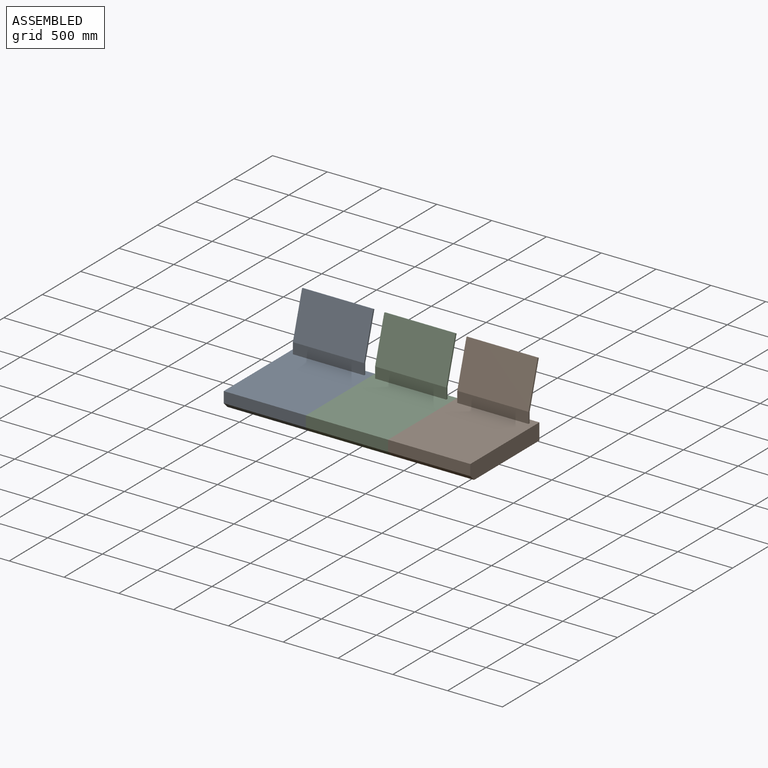
[diagram: assembled view]
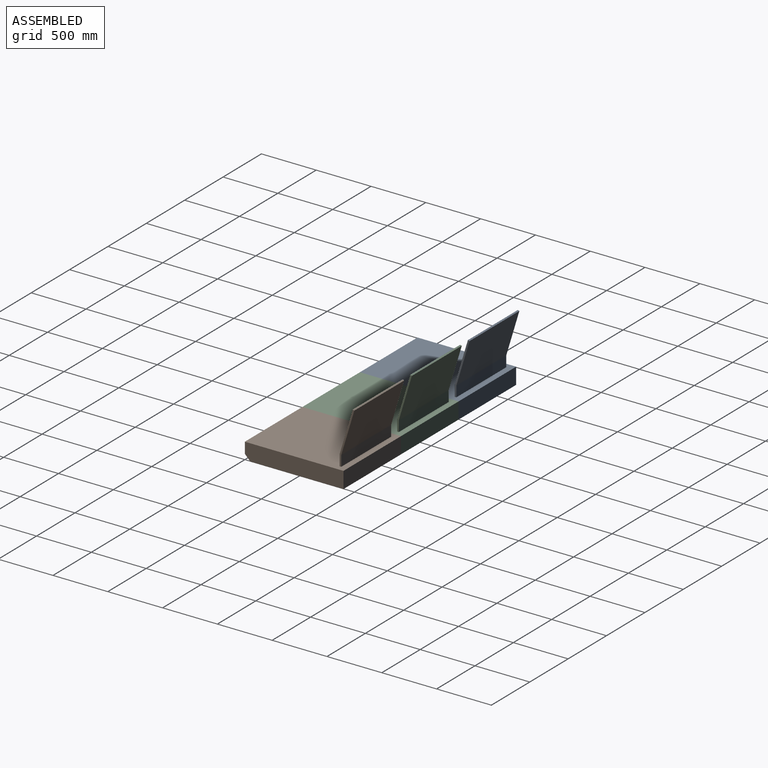
[diagram: assembled view, second angle]
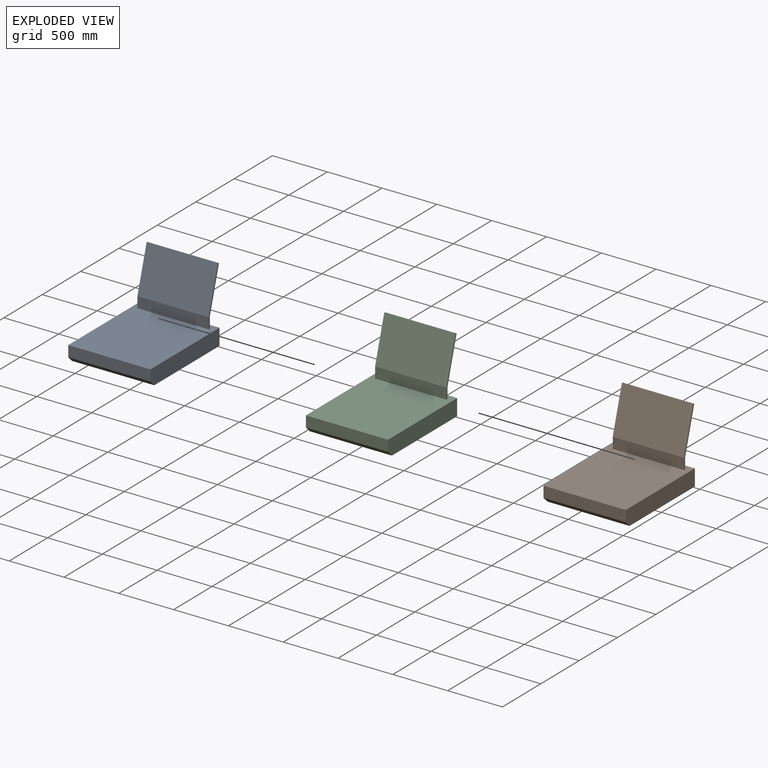
[diagram: exploded view]
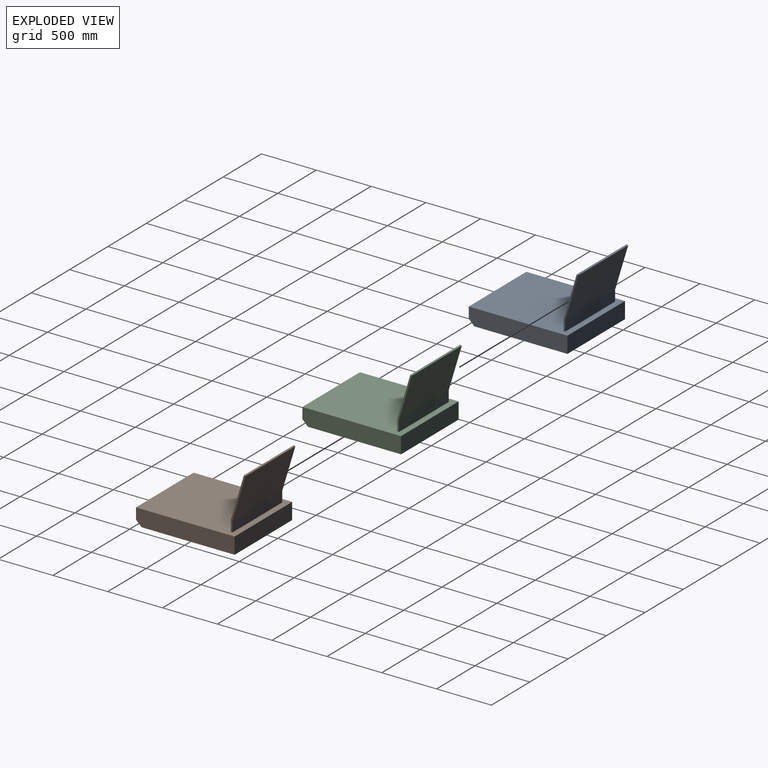
[diagram: exploded view, second angle]
ASSEMBLY  parts=3 mates=2
PART A: 14 faces, bbox 750x964.2x650 mm
  f0: plane 750x150mm, normal (0,1,0), area 112500mm2, adj f1,f3,f4,f5
  f1: plane 900x750mm, normal (0,0,1), area 665250mm2, adj f0,f2,f4,f5,f7,f11,f12,f13
  f2: plane 750x100mm, normal (0,-1,0), area 75000mm2, adj f1,f4,f5,f6
  f3: plane 850x750mm, normal (0,0,-1), area 637500mm2, adj f0,f4,f5,f6
  f4: plane 900x150mm, normal (1,0,0), area 133750mm2, adj f0,f1,f2,f3,f6
  f5: plane 900x150mm, normal (-1,0,0), area 133750mm2, adj f0,f1,f2,f3,f6
  f6: plane 750x50mm, normal (0,-0.71,-0.71), area 53033mm2, adj f2,f3,f4,f5
  f7: plane 650x97.8mm, normal (0,1,0), area 63569mm2, adj f1,f8,f12,f13
  f8: plane 650x397.31mm, normal (0,0.96,-0.29), area 269619mm2, adj f7,f9,f12,f13
  f9: plane 650x14.19mm, normal (0,0.33,0.95), area 9758.1mm2, adj f8,f10,f12,f13
  f10: plane 650x400mm, normal (0,-0.96,0.29), area 271448mm2, adj f9,f11,f12,f13
  f11: plane 650x100mm, normal (0,-1,0), area 65000mm2, adj f1,f10,f12,f13
  f12: plane 500x134.19mm, normal (1,0,0), area 7726.6mm2, adj f1,f7,f8,f9,f10,f11
  f13: plane 500x134.19mm, normal (-1,0,0), area 7726.6mm2, adj f1,f7,f8,f9,f10,f11
PART B: same geometry as A
PART C: same geometry as A
PLACE A t=(696.29,0,0)mm
PLACE B t=(2196.29,0,0)mm
PLACE C t=(1446.29,0,0)mm
MATE fastened A.f4 <-> C.f5  axis (1,0,0) through (1071.29,450,-75)mm
MATE fastened C.f4 <-> B.f5  axis (1,0,0) through (1821.29,450,-75)mm
